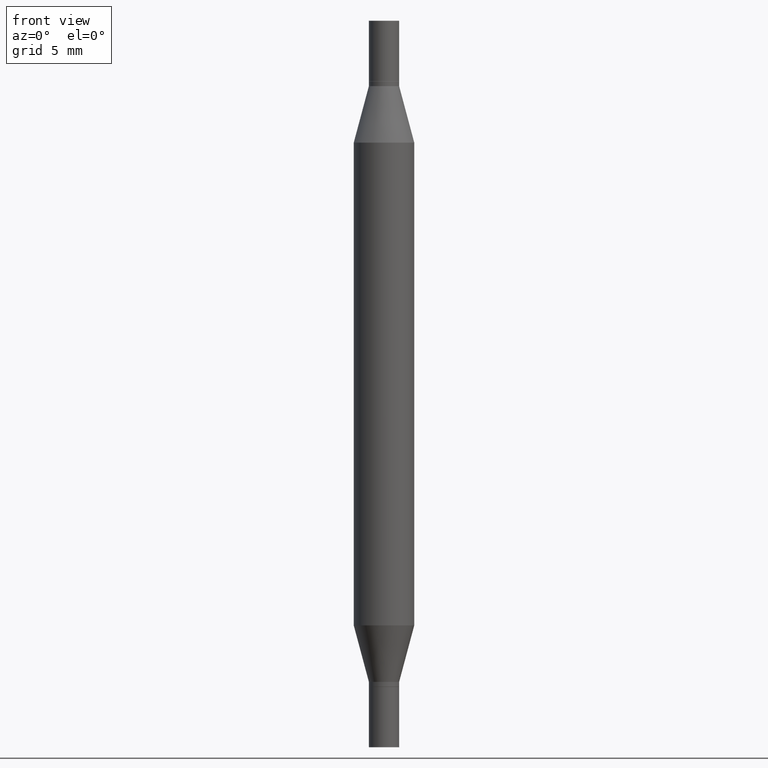
[diagram: clean part render]
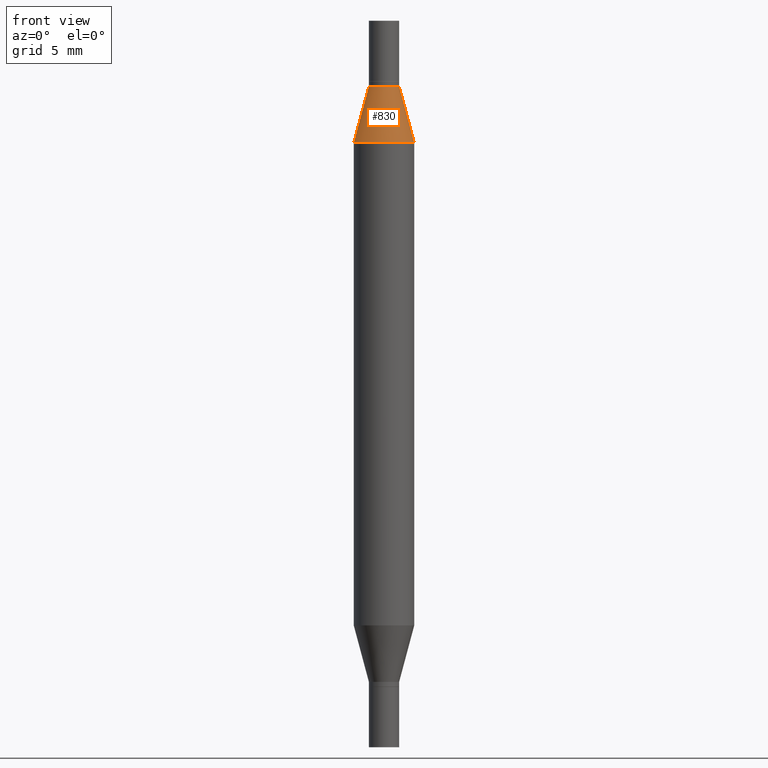
[diagram: same view with one face highlighted and labeled with its STEP entity id]
A machine part, front view. The second image highlights one B-rep face of the part: STEP entity #830.
In plain terms, the highlighted conical surface has half-angle 15 deg.
Its self-contained STEP definition (entity closure, byte-faithful):
#18 = CARTESIAN_POINT ( 'NONE',  ( -0.03124999999999992367, -2.567603083009074019E-16, -0.1349999999999997868 ) ) ;
#57 = CONICAL_SURFACE ( 'NONE', #775, 0.03124999999999992367, 0.2617993877991511287 ) ;
#112 = DIRECTION ( 'NONE',  ( 0.2588190451025224048, -5.180148453816013512E-15, -0.9659258262890678681 ) ) ;
#166 = CARTESIAN_POINT ( 'NONE',  ( 3.338064920442711275E-29, -4.711508707312672701E-16, -0.1349999999999997868 ) ) ;
#190 = EDGE_CURVE ( 'NONE', #636, #905, #336, .T. ) ;
#210 = CIRCLE ( 'NONE', #872, 0.03124999999999992367 ) ;
#237 = DIRECTION ( 'NONE',  ( -0.2588190451025224048, -1.597197180879706043E-15, -0.9659258262890678681 ) ) ;
#283 = CARTESIAN_POINT ( 'NONE',  ( 3.052858238161220135E-29, -8.783881839976021314E-16, -0.2516265877365266856 ) ) ;
#286 = DIRECTION ( 'NONE',  ( 1.000000000000000000, -6.982962677686266711E-15, 0.000000000000000000 ) ) ;
#336 = LINE ( 'NONE', #348, #385 ) ;
#348 = CARTESIAN_POINT ( 'NONE',  ( 0.03124999999999992367, -6.893684544089624146E-16, -0.1349999999999997868 ) ) ;
#385 = VECTOR ( 'NONE', #112, 39.37007874015748143 ) ;
#387 = CIRCLE ( 'NONE', #438, 0.06250000000000000000 ) ;
#433 = EDGE_CURVE ( 'NONE', #656, #908, #699, .T. ) ;
#438 = AXIS2_PLACEMENT_3D ( 'NONE', #283, #822, #286 ) ;
#441 = CARTESIAN_POINT ( 'NONE',  ( 0.03124999999999992367, -6.893684544089624146E-16, -0.1349999999999997868 ) ) ;
#473 = DIRECTION ( 'NONE',  ( 1.000000000000000000, -6.982962677686265133E-15, 0.000000000000000000 ) ) ;
#493 = EDGE_CURVE ( 'NONE', #656, #636, #210, .T. ) ;
#494 = DIRECTION ( 'NONE',  ( 2.445468806185136597E-29, 3.491805094961124077E-15, 1.000000000000000000 ) ) ;
#541 = ORIENTED_EDGE ( 'NONE', *, *, #493, .F. ) ;
#581 = VECTOR ( 'NONE', #237, 39.37007874015748143 ) ;
#583 = CARTESIAN_POINT ( 'NONE',  ( -0.03124999999999992367, -2.401742340998409702E-16, -0.1349999999999997868 ) ) ;
#602 = DIRECTION ( 'NONE',  ( 1.000000000000000000, -6.982962677686265133E-15, 0.000000000000000000 ) ) ;
#603 = ORIENTED_EDGE ( 'NONE', *, *, #725, .T. ) ;
#636 = VERTEX_POINT ( 'NONE', #441 ) ;
#637 = CARTESIAN_POINT ( 'NONE',  ( -0.06250000000000000000, -4.496070591368817046E-16, -0.2516265877365266856 ) ) ;
#656 = VERTEX_POINT ( 'NONE', #583 ) ;
#699 = LINE ( 'NONE', #18, #581 ) ;
#725 = EDGE_CURVE ( 'NONE', #908, #905, #387, .T. ) ;
#766 = DIRECTION ( 'NONE',  ( -2.445468806185136597E-29, -3.491805094961124077E-15, -1.000000000000000000 ) ) ;
#775 = AXIS2_PLACEMENT_3D ( 'NONE', #851, #766, #602 ) ;
#820 = ORIENTED_EDGE ( 'NONE', *, *, #433, .T. ) ;
#822 = DIRECTION ( 'NONE',  ( 2.445468806185136597E-29, 3.491805094961124077E-15, 1.000000000000000000 ) ) ;
#829 = FACE_OUTER_BOUND ( 'NONE', #924, .T. ) ;
#830 = ADVANCED_FACE ( 'NONE', ( #829 ), #57, .T. ) ;
#842 = CARTESIAN_POINT ( 'NONE',  ( 0.06250000000000000000, -1.314823351352993998E-15, -0.2516265877365266856 ) ) ;
#851 = CARTESIAN_POINT ( 'NONE',  ( 3.338064920442711275E-29, -4.711508707312672701E-16, -0.1349999999999997868 ) ) ;
#872 = AXIS2_PLACEMENT_3D ( 'NONE', #166, #494, #473 ) ;
#905 = VERTEX_POINT ( 'NONE', #842 ) ;
#908 = VERTEX_POINT ( 'NONE', #637 ) ;
#918 = ORIENTED_EDGE ( 'NONE', *, *, #190, .F. ) ;
#924 = EDGE_LOOP ( 'NONE', ( #541, #820, #603, #918 ) ) ;